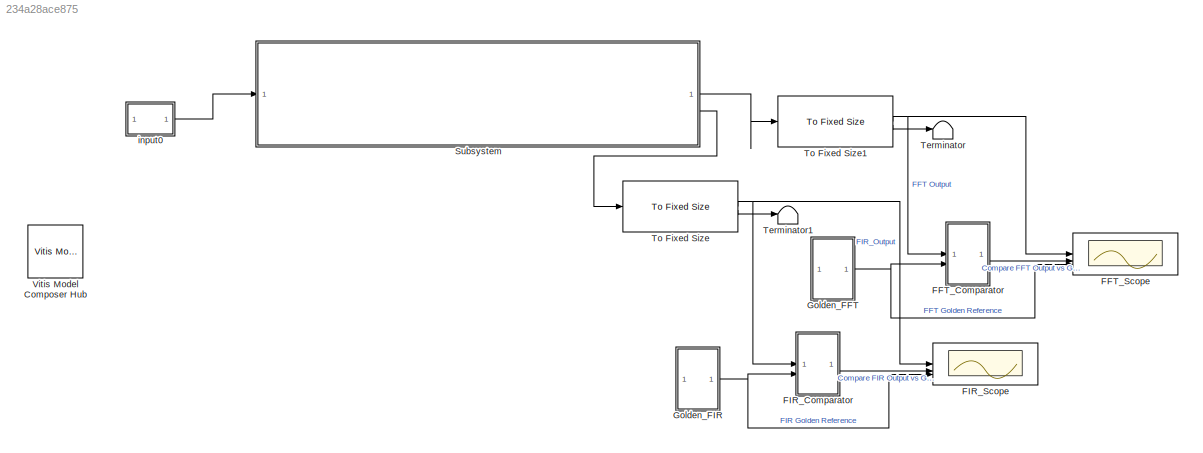
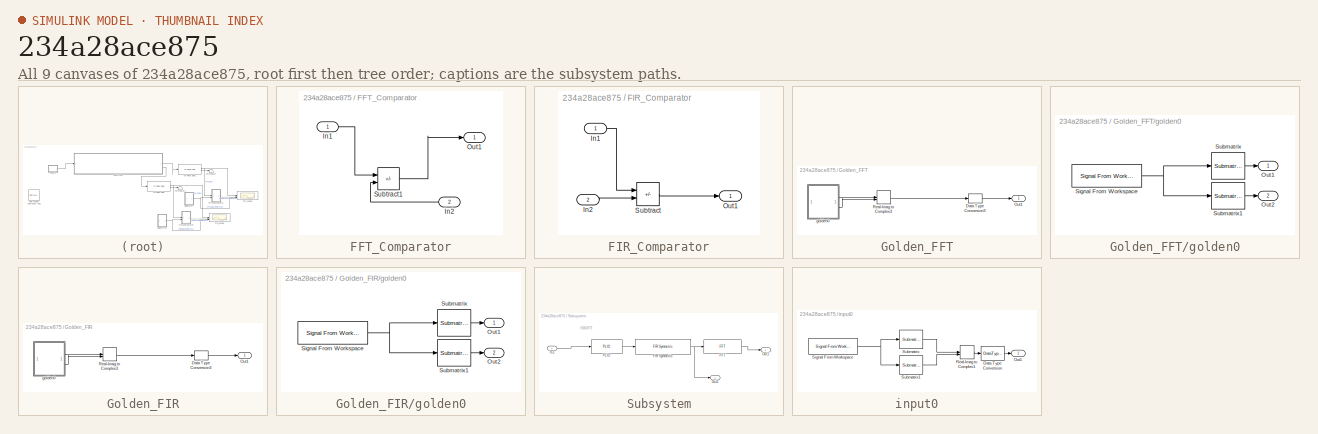
[diagram: thumbnail index - all 9 canvases of the model, root first then tree order]
MODEL slx_234a28ace875
KIND model
CONFIG AbsTol = auto
CONFIG EnableMultiTasking = off
CONFIG FixedStep = auto
CONFIG MaxStep = auto
CONFIG MinStep = auto
CONFIG PreLoadFcn = PreprocIndata  = dataPreProc('data/sig_i.txt');\nPreprocFirOutdata  = dataPreProc('data/fir_o.txt');\nPreprocFftOutdata  = dataPreProc('data/fft_o.txt');\n
CONFIG RelTol = 1e-3
CONFIG SampleTimeConstraint = Unconstrained
CONFIG SolverName = VariableStepAuto
CONFIG StartTime = 0.0
CONFIG StopTime = 10.0
BLOCK [SubSystem] FFT_Comparator
BLOCK [Inport] FFT_Comparator/In1
BLOCK [Inport] FFT_Comparator/In2
  Port = 2
BLOCK [Outport] FFT_Comparator/Out1
BLOCK [Sum] FFT_Comparator/Subtract1
  IconShape = rectangular
  Inputs = +-
  OutDataTypeStr = double
BLOCK [Scope] FFT_Scope
  ActiveDisplayYMaximum = 32768
  ActiveDisplayYMinimum = -32768
  DataLoggingLimitDataPoints = on
  DataLoggingVariableName = ScopeData1
  Floating = off
  FrameBasedProcessingString = Columns as channels (frame based)
  GraphicalSettings = {"Style":{"BackgroundColor":[0.12941176470588237,0.12941176470588237,0.12941176470588237],"AxesColor":[0.07058823529411765,0.07058823529411765,0.07058823529411765],"LabelsColor":[0.8509803921568627,0.8509803921568627,0.8509803921568627],"PreserveColors":false,"Visible":[true,true,true,true,true,true],"LineStyle":["-","-","-","-","-","-"],"LineWidth":[1.5,1.5,1.5,1.5,1.5,1.5],"BarWidth":[0.9,0.9,0....<+3018ch>
  LayoutDimensionsString = [3 1]
  MultipleDisplayCache = [{"MaxYLimMag":30501.375,"MaxYLimReal":32768,"MinYLimMag":0,"MinYLimReal":-32768,"PlotAsMagnitudePhase":false,"ShowGrid":true,"ShowLegend":false,"Title":"%<SignalLabel>","YLabel":""},{"MaxYLimMag":10,"MaxYLimReal":32768,"MinYLimMag":0,"MinYLimReal":-32768,"PlotAsMagnitudePhase":false,"ShowGrid":true,"ShowLegend":false,"Title":"%<SignalLabel>","YLabel":""},{"MaxYLimMag":10,"MaxYLimReal":32768,"MinY...<+133ch>
  NumInputPorts = 3
  ScopeFrameLocation = window
  WasSavedAsWebScope = on
  WindowPosition = [540.000000,165.000000,976.000000,589.000000,]
BLOCK [SubSystem] FIR_Comparator
BLOCK [Inport] FIR_Comparator/In1
BLOCK [Inport] FIR_Comparator/In2
  Port = 2
BLOCK [Outport] FIR_Comparator/Out1
BLOCK [Sum] FIR_Comparator/Subtract
  IconShape = rectangular
  Inputs = +-
BLOCK [Scope] FIR_Scope
  ActiveDisplayYMaximum = 11412
  ActiveDisplayYMinimum = -8558
  DataLoggingLimitDataPoints = on
  Floating = off
  FrameBasedProcessingString = Columns as channels (frame based)
  GraphicalSettings = {"Style":{"BackgroundColor":[0.12941176470588237,0.12941176470588237,0.12941176470588237],"AxesColor":[0.07058823529411765,0.07058823529411765,0.07058823529411765],"LabelsColor":[0.8509803921568627,0.8509803921568627,0.8509803921568627],"PreserveColors":false,"Visible":[true,true,true,true,true,true],"LineStyle":["-","-","-","-","-","-"],"LineWidth":[1.5,1.5,1.5,1.5,1.5,1.5],"BarWidth":[0.9,0.9,0....<+3009ch>
  LayoutDimensionsString = [3 1]
  MultipleDisplayCache = [{"MaxYLimMag":1824.40518,"MaxYLimReal":11412,"MinYLimMag":0,"MinYLimReal":-8558,"PlotAsMagnitudePhase":false,"ShowGrid":true,"ShowLegend":false,"Title":"%<SignalLabel>","YLabel":""},{"MaxYLimMag":10,"MaxYLimReal":1,"MinYLimMag":0,"MinYLimReal":-1,"PlotAsMagnitudePhase":false,"ShowGrid":true,"ShowLegend":false,"Title":"%<SignalLabel>","YLabel":""},{"MaxYLimMag":10,"MaxYLimReal":11412,"MinYLimMag":...<+124ch>
  NumInputPorts = 3
  ScopeFrameLocation = window
  WasSavedAsWebScope = on
  WindowPosition = [322.000000,322.000000,570.000000,413.000000,]
BLOCK [SubSystem] Golden_FFT
BLOCK [DataTypeConversion] Golden_FFT/Data Type Conversion3
  OutDataTypeStr = int16
  RndMeth = Floor
  SaturateOnIntegerOverflow = off
BLOCK [Outport] Golden_FFT/Out1
BLOCK [RealImagToComplex] Golden_FFT/Real-Imag to Complex3
BLOCK [SubSystem] Golden_FFT/golden0
BLOCK [Outport] Golden_FFT/golden0/Out1
  VectorParamsAs1DForOutWhenUnconnected = off
BLOCK [Outport] Golden_FFT/golden0/Out2
  Port = 2
  VectorParamsAs1DForOutWhenUnconnected = off
BLOCK [Reference] Golden_FFT/golden0/Signal From Workspace  REF=dspsrcs4/Signal From
Workspace
  SourceBlock = dspsrcs4/Signal From\nWorkspace
  SourceType = Signal From Workspace
BLOCK [Reference] Golden_FFT/golden0/Submatrix  REF=matrix_library/Submatrix
  SourceBlock = matrix_library/Submatrix
  SourceType = Submatrix
BLOCK [Reference] Golden_FFT/golden0/Submatrix1  REF=matrix_library/Submatrix
  SourceBlock = matrix_library/Submatrix
  SourceType = Submatrix
BLOCK [SubSystem] Golden_FIR
BLOCK [DataTypeConversion] Golden_FIR/Data Type Conversion3
  OutDataTypeStr = int16
  RndMeth = Floor
  SaturateOnIntegerOverflow = off
BLOCK [Outport] Golden_FIR/Out1
BLOCK [RealImagToComplex] Golden_FIR/Real-Imag to Complex3
BLOCK [SubSystem] Golden_FIR/golden0
BLOCK [Outport] Golden_FIR/golden0/Out1
  VectorParamsAs1DForOutWhenUnconnected = off
BLOCK [Outport] Golden_FIR/golden0/Out2
  Port = 2
  VectorParamsAs1DForOutWhenUnconnected = off
BLOCK [Reference] Golden_FIR/golden0/Signal From Workspace  REF=dspsrcs4/Signal From
Workspace
  SourceBlock = dspsrcs4/Signal From\nWorkspace
  SourceType = Signal From Workspace
BLOCK [Reference] Golden_FIR/golden0/Submatrix  REF=matrix_library/Submatrix
  SourceBlock = matrix_library/Submatrix
  SourceType = Submatrix
BLOCK [Reference] Golden_FIR/golden0/Submatrix1  REF=matrix_library/Submatrix
  SourceBlock = matrix_library/Submatrix
  SourceType = Submatrix
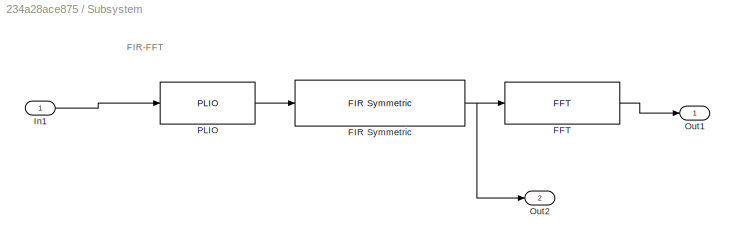
BLOCK [SubSystem] Subsystem
BLOCK [Reference] Subsystem/FFT  REF=aieDSP/FFT
  SourceBlock = aieDSP/FFT
  SourceType = FFT
BLOCK [Reference] Subsystem/FIR Symmetric  REF=aieDSP/FIR Symmetric
  SourceBlock = aieDSP/FIR Symmetric
  SourceType = FIR Symmetric
BLOCK [Inport] Subsystem/In1
BLOCK [Outport] Subsystem/Out1
BLOCK [Outport] Subsystem/Out2
  Port = 2
BLOCK [Reference] Subsystem/PLIO  REF=aieBasic/PLIO
  SourceBlock = aieBasic/PLIO
  SourceType = PLIO
BLOCK [Terminator] Terminator
BLOCK [Terminator] Terminator1
BLOCK [Reference] To Fixed Size  REF=aieUtilities/To Fixed Size
  SourceBlock = aieUtilities/To Fixed Size
  SourceType = To Fixed Size
BLOCK [Reference] To Fixed Size1  REF=aieUtilities/To Fixed Size
  SourceBlock = aieUtilities/To Fixed Size
  SourceType = To Fixed Size
BLOCK [Reference] Vitis Model Composer Hub  REF=vmcUtilities/Vitis Model Composer Hub
  SourceBlock = vmcUtilities/Vitis Model Composer Hub
  SourceType = VMC Hub
  Tag = genX
  UserDataPersistent = on
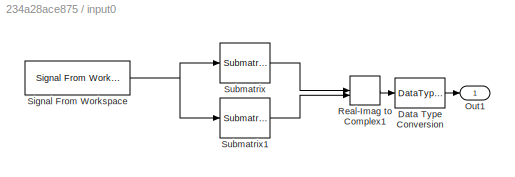
BLOCK [SubSystem] input0
BLOCK [DataTypeConversion] input0/Data Type Conversion
  OutDataTypeStr = int16
  RndMeth = Floor
  SaturateOnIntegerOverflow = off
BLOCK [Outport] input0/Out1
BLOCK [RealImagToComplex] input0/Real-Imag to Complex1
BLOCK [Reference] input0/Signal From Workspace  REF=dspsrcs4/Signal From
Workspace
  SourceBlock = dspsrcs4/Signal From\nWorkspace
  SourceType = Signal From Workspace
BLOCK [Reference] input0/Submatrix  REF=matrix_library/Submatrix
  SourceBlock = matrix_library/Submatrix
  SourceType = Submatrix
BLOCK [Reference] input0/Submatrix1  REF=matrix_library/Submatrix
  SourceBlock = matrix_library/Submatrix
  SourceType = Submatrix
ANNOTATION Subsystem: FIR-FFT
LINE FFT_Comparator/In1:1 -> FFT_Comparator/Subtract1:1
LINE FFT_Comparator/In2:1 -> FFT_Comparator/Subtract1:2
LINE FFT_Comparator/Subtract1:1 -> FFT_Comparator/Out1:1
LINE FFT_Comparator:1 -> FFT_Scope:2
LINE FIR_Comparator/In1:1 -> FIR_Comparator/Subtract:1
LINE FIR_Comparator/In2:1 -> FIR_Comparator/Subtract:2
LINE FIR_Comparator/Subtract:1 -> FIR_Comparator/Out1:1
LINE FIR_Comparator:1 -> FIR_Scope:2
LINE Golden_FFT/Data Type Conversion3:1 -> Golden_FFT/Out1:1
LINE Golden_FFT/Real-Imag to Complex3:1 -> Golden_FFT/Data Type Conversion3:1
NET Golden_FFT/golden0/Signal From Workspace:1 -> Golden_FFT/golden0/Submatrix1:1, Golden_FFT/golden0/Submatrix:1
LINE Golden_FFT/golden0/Submatrix1:1 -> Golden_FFT/golden0/Out2:1
LINE Golden_FFT/golden0/Submatrix:1 -> Golden_FFT/golden0/Out1:1
LINE Golden_FFT/golden0:1 -> Golden_FFT/Real-Imag to Complex3:1
LINE Golden_FFT/golden0:2 -> Golden_FFT/Real-Imag to Complex3:2
NET Golden_FFT:1 -> FFT_Comparator:2, FFT_Scope:3
LINE Golden_FIR/Data Type Conversion3:1 -> Golden_FIR/Out1:1
LINE Golden_FIR/Real-Imag to Complex3:1 -> Golden_FIR/Data Type Conversion3:1
NET Golden_FIR/golden0/Signal From Workspace:1 -> Golden_FIR/golden0/Submatrix1:1, Golden_FIR/golden0/Submatrix:1
LINE Golden_FIR/golden0/Submatrix1:1 -> Golden_FIR/golden0/Out2:1
LINE Golden_FIR/golden0/Submatrix:1 -> Golden_FIR/golden0/Out1:1
LINE Golden_FIR/golden0:1 -> Golden_FIR/Real-Imag to Complex3:1
LINE Golden_FIR/golden0:2 -> Golden_FIR/Real-Imag to Complex3:2
NET Golden_FIR:1 -> FIR_Comparator:2, FIR_Scope:3
LINE Subsystem/FFT:1 -> Subsystem/Out1:1
NET Subsystem/FIR Symmetric:1 -> Subsystem/FFT:1, Subsystem/Out2:1
LINE Subsystem/In1:1 -> Subsystem/PLIO:1
LINE Subsystem/PLIO:1 -> Subsystem/FIR Symmetric:1
LINE Subsystem:1 -> To Fixed Size1:1
LINE Subsystem:2 -> To Fixed Size:1
NET To Fixed Size1:1 -> FFT_Comparator:1, FFT_Scope:1
LINE To Fixed Size1:2 -> Terminator:1
NET To Fixed Size:1 -> FIR_Comparator:1, FIR_Scope:1
LINE To Fixed Size:2 -> Terminator1:1
LINE input0/Data Type Conversion:1 -> input0/Out1:1
LINE input0/Real-Imag to Complex1:1 -> input0/Data Type Conversion:1
NET input0/Signal From Workspace:1 -> input0/Submatrix1:1, input0/Submatrix:1
LINE input0/Submatrix1:1 -> input0/Real-Imag to Complex1:2
LINE input0/Submatrix:1 -> input0/Real-Imag to Complex1:1
LINE input0:1 -> Subsystem:1
note: NET lines group one-source signal fan-out (src -> all destinations, sorted); 1:1 wires keep LINE
